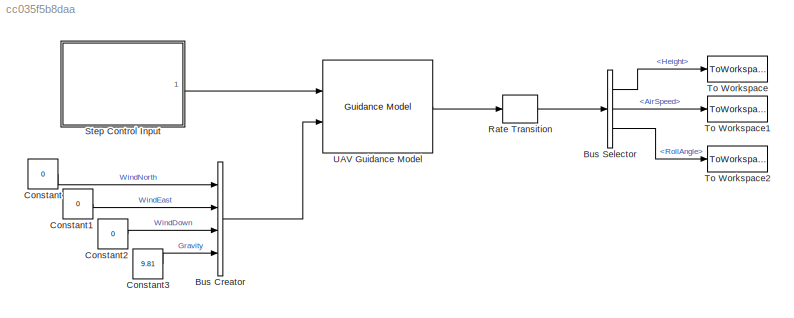
MODEL slx_cc035f5b8daa
KIND model
BLOCK [BusCreator] Bus Creator
  DisplayOption = bar
  InheritFromInputs = on
  Inputs = 4
  NonVirtualBus = on
  OutDataTypeStr = Bus: FixedWingEnvironmentBus
  Ports = [4, 1]
BLOCK [BusSelector] Bus Selector
  OutputSignals = Height,AirSpeed,RollAngle
  Ports = [1, 3]
BLOCK [Constant] Constant
  Value = 0
BLOCK [Constant] Constant1
  Value = 0
BLOCK [Constant] Constant2
  Value = 0
BLOCK [Constant] Constant3
  Value = 9.81
BLOCK [RateTransition] Rate Transition
  OutPortSampleTime = 0.1
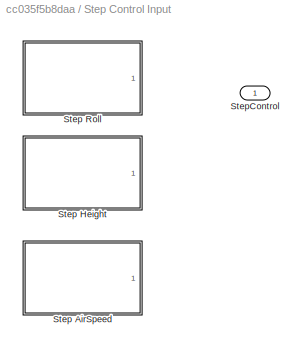
BLOCK [SubSystem] Step Control Input
  LabelModeActiveChoice = StepRollAngle
  Ports = [0, 1]
  RequestExecContextInheritance = off
  Variant = on
  VariantControlMode = label
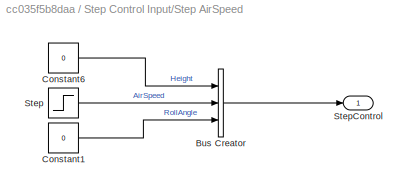
BLOCK [SubSystem] Step Control Input/Step AirSpeed
  Ports = [0, 1]
  RequestExecContextInheritance = off
  VariantControl = StepAirSpeed
BLOCK [BusCreator] Step Control Input/Step AirSpeed/Bus Creator
  DisplayOption = bar
  InheritFromInputs = on
  Inputs = 3
  NonVirtualBus = on
  OutDataTypeStr = Bus: FixedWingControlBus
  Ports = [3, 1]
BLOCK [Constant] Step Control Input/Step AirSpeed/Constant1
  Value = 0
BLOCK [Constant] Step Control Input/Step AirSpeed/Constant6
  Value = 0
BLOCK [Step] Step Control Input/Step AirSpeed/Step
  After = 16
  Before = 15
  SampleTime = 0
  Time = TFinal/2
BLOCK [Outport] Step Control Input/Step AirSpeed/StepControl
  VectorParamsAs1DForOutWhenUnconnected = off
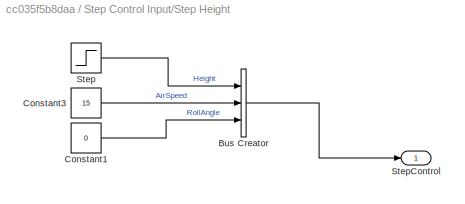
BLOCK [SubSystem] Step Control Input/Step Height
  Ports = [0, 1]
  RequestExecContextInheritance = off
  VariantControl = StepHeight
BLOCK [BusCreator] Step Control Input/Step Height/Bus Creator
  DisplayOption = bar
  InheritFromInputs = on
  Inputs = 3
  NonVirtualBus = on
  OutDataTypeStr = Bus: FixedWingControlBus
  Ports = [3, 1]
BLOCK [Constant] Step Control Input/Step Height/Constant1
  Value = 0
BLOCK [Constant] Step Control Input/Step Height/Constant3
  Value = 15
BLOCK [Step] Step Control Input/Step Height/Step
  After = 5
  SampleTime = 0
  Time = TFinal/2
BLOCK [Outport] Step Control Input/Step Height/StepControl
  VectorParamsAs1DForOutWhenUnconnected = off
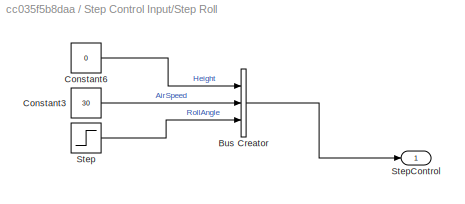
BLOCK [SubSystem] Step Control Input/Step Roll
  Ports = [0, 1]
  RequestExecContextInheritance = off
  VariantControl = StepRollAngle
BLOCK [BusCreator] Step Control Input/Step Roll/Bus Creator
  DisplayOption = bar
  InheritFromInputs = on
  Inputs = 3
  NonVirtualBus = on
  OutDataTypeStr = Bus: FixedWingControlBus
  Ports = [3, 1]
BLOCK [Constant] Step Control Input/Step Roll/Constant3
  Value = 30
BLOCK [Constant] Step Control Input/Step Roll/Constant6
  Value = 0
BLOCK [Step] Step Control Input/Step Roll/Step
  After = pi/18
  SampleTime = 0
BLOCK [Outport] Step Control Input/Step Roll/StepControl
  VectorParamsAs1DForOutWhenUnconnected = off
BLOCK [Outport] Step Control Input/StepControl
  VectorParamsAs1DForOutWhenUnconnected = off
BLOCK [ToWorkspace] To Workspace
  FixptAsFi = on
  MaxDataPoints = inf
  Ports = [1]
  SampleTime = -1
  SaveFormat = Timeseries
  VariableName = Height
BLOCK [ToWorkspace] To Workspace1
  FixptAsFi = on
  MaxDataPoints = inf
  Ports = [1]
  SampleTime = -1
  SaveFormat = Timeseries
  VariableName = AirSpeed
BLOCK [ToWorkspace] To Workspace2
  FixptAsFi = on
  MaxDataPoints = inf
  Ports = [1]
  SampleTime = -1
  SaveFormat = Timeseries
  VariableName = RollAngle_Low
BLOCK [Reference] UAV Guidance Model  REF=uavalgslib/Guidance Model
  Ports = [2, 1]
  SourceBlock = uavalgslib/Guidance Model
  SourceProductBaseCode = UV
  SourceType = Guidance Model
LINE Bus Creator:1 -> UAV Guidance Model:2
LINE Bus Selector:1 -> To Workspace:1
LINE Bus Selector:2 -> To Workspace1:1
LINE Bus Selector:3 -> To Workspace2:1
LINE Constant1:1 -> Bus Creator:2
LINE Constant2:1 -> Bus Creator:3
LINE Constant3:1 -> Bus Creator:4
LINE Constant:1 -> Bus Creator:1
LINE Rate Transition:1 -> Bus Selector:1
LINE Step Control Input/Step AirSpeed/Bus Creator:1 -> Step Control Input/Step AirSpeed/StepControl:1
LINE Step Control Input/Step AirSpeed/Constant1:1 -> Step Control Input/Step AirSpeed/Bus Creator:3
LINE Step Control Input/Step AirSpeed/Constant6:1 -> Step Control Input/Step AirSpeed/Bus Creator:1
LINE Step Control Input/Step AirSpeed/Step:1 -> Step Control Input/Step AirSpeed/Bus Creator:2
LINE Step Control Input/Step Height/Bus Creator:1 -> Step Control Input/Step Height/StepControl:1
LINE Step Control Input/Step Height/Constant1:1 -> Step Control Input/Step Height/Bus Creator:3
LINE Step Control Input/Step Height/Constant3:1 -> Step Control Input/Step Height/Bus Creator:2
LINE Step Control Input/Step Height/Step:1 -> Step Control Input/Step Height/Bus Creator:1
LINE Step Control Input/Step Roll/Bus Creator:1 -> Step Control Input/Step Roll/StepControl:1
LINE Step Control Input/Step Roll/Constant3:1 -> Step Control Input/Step Roll/Bus Creator:2
LINE Step Control Input/Step Roll/Constant6:1 -> Step Control Input/Step Roll/Bus Creator:1
LINE Step Control Input/Step Roll/Step:1 -> Step Control Input/Step Roll/Bus Creator:3
LINE Step Control Input:1 -> UAV Guidance Model:1
LINE UAV Guidance Model:1 -> Rate Transition:1
